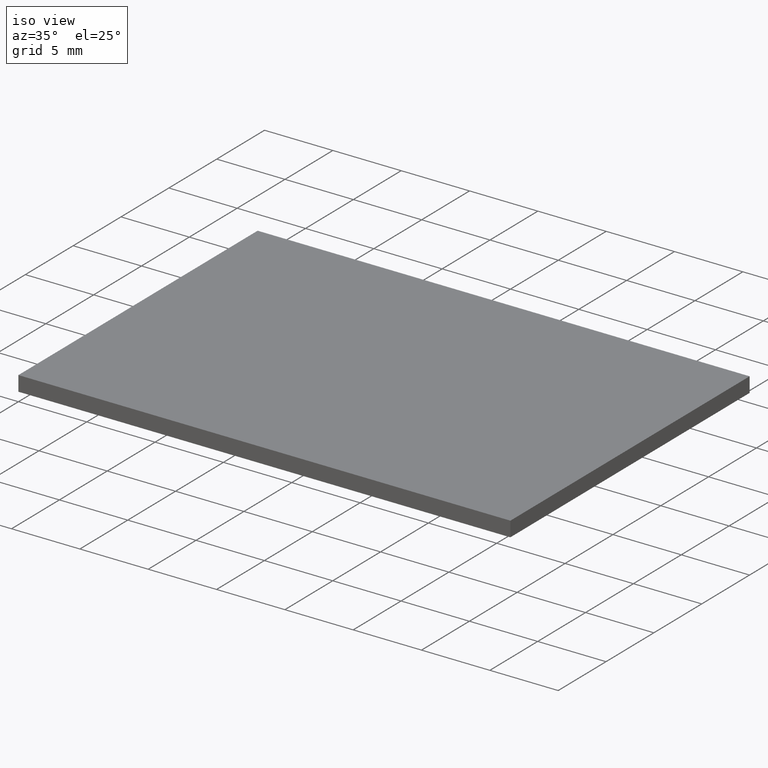
[diagram: clean part render]
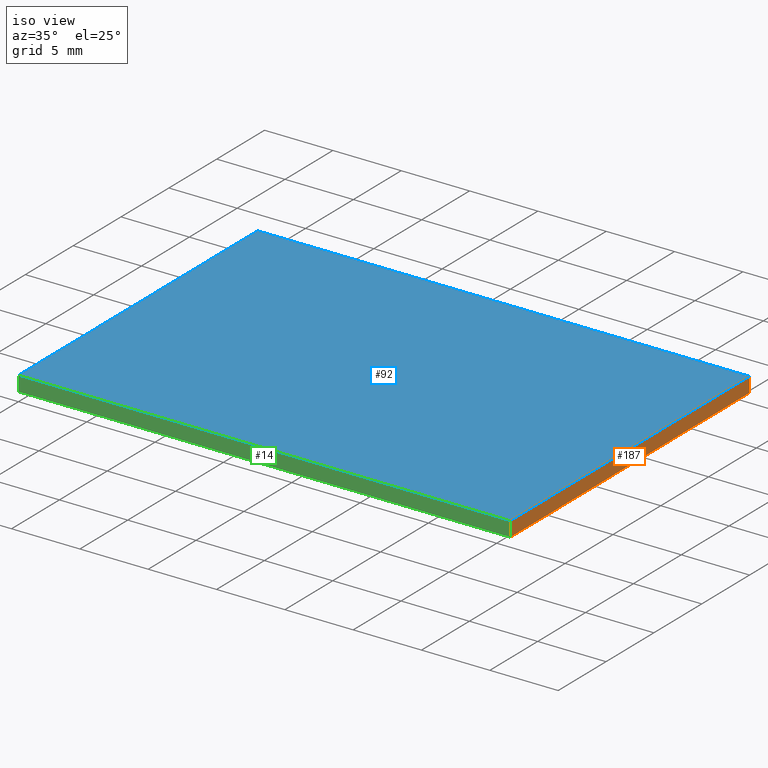
[diagram: same view with three faces highlighted in distinct colors, each labeled with its STEP entity id]
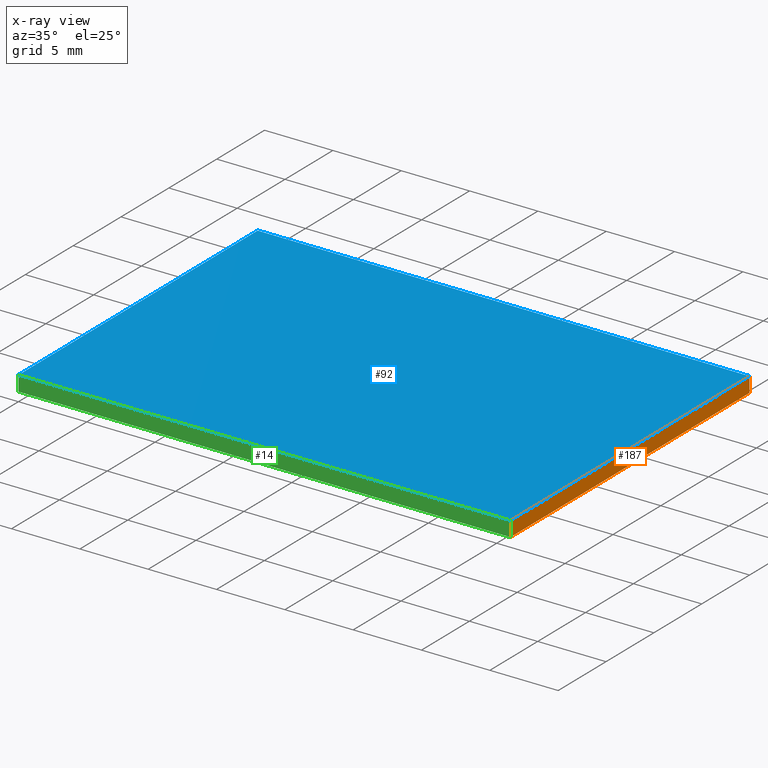
[diagram: x-ray of the same camera — body ghosted, the three highlighted faces saturated]
A machine part, iso view with three faces highlighted in distinct colors.
The next image is the same camera in x-ray (body ghosted, the three faces saturated) — at least one of them is partly hidden behind the body in this view.
Their STEP definitions:

[orange] entity #187 — the highlighted planar face has unit normal (-1, 0, 0).
#15 = ORIENTED_EDGE ( 'NONE', *, *, #182, .T. ) ;
#21 = DIRECTION ( 'NONE',  ( -0.000000000000000000, -0.000000000000000000, -1.000000000000000000 ) ) ;
#23 = EDGE_CURVE ( 'NONE', #202, #157, #91, .T. ) ;
#26 = DIRECTION ( 'NONE',  ( -1.000000000000000000, 0.000000000000000000, 0.000000000000000000 ) ) ;
#30 = DIRECTION ( 'NONE',  ( 0.000000000000000000, 1.000000000000000000, 0.000000000000000000 ) ) ;
#36 = VECTOR ( 'NONE', #158, 1000.000000000000000 ) ;
#40 = PLANE ( 'NONE',  #90 ) ;
#42 = LINE ( 'NONE', #117, #141 ) ;
#45 = VERTEX_POINT ( 'NONE', #197 ) ;
#51 = ORIENTED_EDGE ( 'NONE', *, *, #56, .F. ) ;
#56 = EDGE_CURVE ( 'NONE', #89, #45, #78, .T. ) ;
#63 = CARTESIAN_POINT ( 'NONE',  ( 36.00000000000000000, 25.00000000000000000, 1.100000000000000089 ) ) ;
#78 = LINE ( 'NONE', #161, #159 ) ;
#87 = VECTOR ( 'NONE', #151, 1000.000000000000000 ) ;
#88 = CARTESIAN_POINT ( 'NONE',  ( 36.00000000000000000, 0.000000000000000000, 1.100000000000000089 ) ) ;
#89 = VERTEX_POINT ( 'NONE', #63 ) ;
#90 = AXIS2_PLACEMENT_3D ( 'NONE', #101, #26, #166 ) ;
#91 = LINE ( 'NONE', #88, #87 ) ;
#93 = CARTESIAN_POINT ( 'NONE',  ( 36.00000000000000000, 0.000000000000000000, 1.100000000000000089 ) ) ;
#101 = CARTESIAN_POINT ( 'NONE',  ( 36.00000000000000000, 0.000000000000000000, 1.100000000000000089 ) ) ;
#105 = ORIENTED_EDGE ( 'NONE', *, *, #23, .T. ) ;
#111 = LINE ( 'NONE', #93, #36 ) ;
#117 = CARTESIAN_POINT ( 'NONE',  ( 36.00000000000000000, 0.000000000000000000, 0.000000000000000000 ) ) ;
#123 = ORIENTED_EDGE ( 'NONE', *, *, #149, .F. ) ;
#133 = CARTESIAN_POINT ( 'NONE',  ( 36.00000000000000000, 0.000000000000000000, 1.100000000000000089 ) ) ;
#141 = VECTOR ( 'NONE', #30, 1000.000000000000000 ) ;
#149 = EDGE_CURVE ( 'NONE', #202, #89, #111, .T. ) ;
#151 = DIRECTION ( 'NONE',  ( -0.000000000000000000, -0.000000000000000000, -1.000000000000000000 ) ) ;
#153 = EDGE_LOOP ( 'NONE', ( #15, #51, #123, #105 ) ) ;
#157 = VERTEX_POINT ( 'NONE', #179 ) ;
#158 = DIRECTION ( 'NONE',  ( 0.000000000000000000, 1.000000000000000000, 0.000000000000000000 ) ) ;
#159 = VECTOR ( 'NONE', #21, 1000.000000000000000 ) ;
#161 = CARTESIAN_POINT ( 'NONE',  ( 36.00000000000000000, 25.00000000000000000, 1.100000000000000089 ) ) ;
#166 = DIRECTION ( 'NONE',  ( 0.000000000000000000, 0.000000000000000000, 1.000000000000000000 ) ) ;
#179 = CARTESIAN_POINT ( 'NONE',  ( 36.00000000000000000, 0.000000000000000000, 0.000000000000000000 ) ) ;
#182 = EDGE_CURVE ( 'NONE', #157, #45, #42, .T. ) ;
#187 = ADVANCED_FACE ( 'NONE', ( #199 ), #40, .F. ) ;
#197 = CARTESIAN_POINT ( 'NONE',  ( 36.00000000000000000, 25.00000000000000000, 0.000000000000000000 ) ) ;
#199 = FACE_OUTER_BOUND ( 'NONE', #153, .T. ) ;
#202 = VERTEX_POINT ( 'NONE', #133 ) ;

[blue] entity #92 — the highlighted planar face has unit normal (0, 0, -1).
#5 = EDGE_CURVE ( 'NONE', #89, #59, #189, .T. ) ;
#12 = VECTOR ( 'NONE', #79, 1000.000000000000000 ) ;
#16 = LINE ( 'NONE', #145, #139 ) ;
#25 = DIRECTION ( 'NONE',  ( 0.000000000000000000, 0.000000000000000000, -1.000000000000000000 ) ) ;
#27 = ORIENTED_EDGE ( 'NONE', *, *, #149, .T. ) ;
#34 = CARTESIAN_POINT ( 'NONE',  ( 0.000000000000000000, 0.000000000000000000, 1.100000000000000089 ) ) ;
#36 = VECTOR ( 'NONE', #158, 1000.000000000000000 ) ;
#38 = DIRECTION ( 'NONE',  ( -1.000000000000000000, 0.000000000000000000, -0.000000000000000000 ) ) ;
#39 = EDGE_CURVE ( 'NONE', #167, #202, #16, .T. ) ;
#43 = VECTOR ( 'NONE', #138, 1000.000000000000000 ) ;
#59 = VERTEX_POINT ( 'NONE', #80 ) ;
#60 = PLANE ( 'NONE',  #196 ) ;
#63 = CARTESIAN_POINT ( 'NONE',  ( 36.00000000000000000, 25.00000000000000000, 1.100000000000000089 ) ) ;
#68 = CARTESIAN_POINT ( 'NONE',  ( 0.000000000000000000, 0.000000000000000000, 1.100000000000000089 ) ) ;
#79 = DIRECTION ( 'NONE',  ( -0.000000000000000000, -1.000000000000000000, -0.000000000000000000 ) ) ;
#80 = CARTESIAN_POINT ( 'NONE',  ( 0.000000000000000000, 25.00000000000000000, 1.100000000000000089 ) ) ;
#89 = VERTEX_POINT ( 'NONE', #63 ) ;
#92 = ADVANCED_FACE ( 'NONE', ( #112 ), #60, .F. ) ;
#93 = CARTESIAN_POINT ( 'NONE',  ( 36.00000000000000000, 0.000000000000000000, 1.100000000000000089 ) ) ;
#96 = DIRECTION ( 'NONE',  ( 1.000000000000000000, 0.000000000000000000, 0.000000000000000000 ) ) ;
#106 = ORIENTED_EDGE ( 'NONE', *, *, #119, .T. ) ;
#108 = CARTESIAN_POINT ( 'NONE',  ( 0.000000000000000000, 25.00000000000000000, 1.100000000000000089 ) ) ;
#111 = LINE ( 'NONE', #93, #36 ) ;
#112 = FACE_OUTER_BOUND ( 'NONE', #137, .T. ) ;
#119 = EDGE_CURVE ( 'NONE', #59, #167, #195, .T. ) ;
#121 = ORIENTED_EDGE ( 'NONE', *, *, #5, .T. ) ;
#133 = CARTESIAN_POINT ( 'NONE',  ( 36.00000000000000000, 0.000000000000000000, 1.100000000000000089 ) ) ;
#137 = EDGE_LOOP ( 'NONE', ( #106, #140, #27, #121 ) ) ;
#138 = DIRECTION ( 'NONE',  ( -1.000000000000000000, -0.000000000000000000, -0.000000000000000000 ) ) ;
#139 = VECTOR ( 'NONE', #96, 1000.000000000000000 ) ;
#140 = ORIENTED_EDGE ( 'NONE', *, *, #39, .T. ) ;
#145 = CARTESIAN_POINT ( 'NONE',  ( 0.000000000000000000, 0.000000000000000000, 1.100000000000000089 ) ) ;
#149 = EDGE_CURVE ( 'NONE', #202, #89, #111, .T. ) ;
#158 = DIRECTION ( 'NONE',  ( 0.000000000000000000, 1.000000000000000000, 0.000000000000000000 ) ) ;
#160 = CARTESIAN_POINT ( 'NONE',  ( 0.000000000000000000, 0.000000000000000000, 1.100000000000000089 ) ) ;
#167 = VERTEX_POINT ( 'NONE', #68 ) ;
#189 = LINE ( 'NONE', #108, #43 ) ;
#195 = LINE ( 'NONE', #34, #12 ) ;
#196 = AXIS2_PLACEMENT_3D ( 'NONE', #160, #25, #38 ) ;
#202 = VERTEX_POINT ( 'NONE', #133 ) ;

[green] entity #14 — the highlighted planar face has unit normal (0, 1, 0).
#8 = CARTESIAN_POINT ( 'NONE',  ( 0.000000000000000000, 0.000000000000000000, 0.000000000000000000 ) ) ;
#14 = ADVANCED_FACE ( 'NONE', ( #154 ), #188, .F. ) ;
#16 = LINE ( 'NONE', #145, #139 ) ;
#17 = CARTESIAN_POINT ( 'NONE',  ( 0.000000000000000000, 0.000000000000000000, 0.000000000000000000 ) ) ;
#18 = VECTOR ( 'NONE', #22, 1000.000000000000000 ) ;
#22 = DIRECTION ( 'NONE',  ( -0.000000000000000000, -0.000000000000000000, -1.000000000000000000 ) ) ;
#23 = EDGE_CURVE ( 'NONE', #202, #157, #91, .T. ) ;
#24 = LINE ( 'NONE', #8, #113 ) ;
#28 = AXIS2_PLACEMENT_3D ( 'NONE', #57, #32, #124 ) ;
#31 = VERTEX_POINT ( 'NONE', #17 ) ;
#32 = DIRECTION ( 'NONE',  ( 0.000000000000000000, 1.000000000000000000, 0.000000000000000000 ) ) ;
#39 = EDGE_CURVE ( 'NONE', #167, #202, #16, .T. ) ;
#44 = ORIENTED_EDGE ( 'NONE', *, *, #97, .T. ) ;
#53 = EDGE_CURVE ( 'NONE', #31, #157, #24, .T. ) ;
#57 = CARTESIAN_POINT ( 'NONE',  ( 0.000000000000000000, 0.000000000000000000, 1.100000000000000089 ) ) ;
#67 = CARTESIAN_POINT ( 'NONE',  ( 0.000000000000000000, 0.000000000000000000, 1.100000000000000089 ) ) ;
#68 = CARTESIAN_POINT ( 'NONE',  ( 0.000000000000000000, 0.000000000000000000, 1.100000000000000089 ) ) ;
#87 = VECTOR ( 'NONE', #151, 1000.000000000000000 ) ;
#88 = CARTESIAN_POINT ( 'NONE',  ( 36.00000000000000000, 0.000000000000000000, 1.100000000000000089 ) ) ;
#91 = LINE ( 'NONE', #88, #87 ) ;
#96 = DIRECTION ( 'NONE',  ( 1.000000000000000000, 0.000000000000000000, 0.000000000000000000 ) ) ;
#97 = EDGE_CURVE ( 'NONE', #167, #31, #177, .T. ) ;
#113 = VECTOR ( 'NONE', #127, 1000.000000000000000 ) ;
#120 = ORIENTED_EDGE ( 'NONE', *, *, #53, .T. ) ;
#124 = DIRECTION ( 'NONE',  ( 0.000000000000000000, -0.000000000000000000, 1.000000000000000000 ) ) ;
#127 = DIRECTION ( 'NONE',  ( 1.000000000000000000, 0.000000000000000000, 0.000000000000000000 ) ) ;
#133 = CARTESIAN_POINT ( 'NONE',  ( 36.00000000000000000, 0.000000000000000000, 1.100000000000000089 ) ) ;
#139 = VECTOR ( 'NONE', #96, 1000.000000000000000 ) ;
#145 = CARTESIAN_POINT ( 'NONE',  ( 0.000000000000000000, 0.000000000000000000, 1.100000000000000089 ) ) ;
#151 = DIRECTION ( 'NONE',  ( -0.000000000000000000, -0.000000000000000000, -1.000000000000000000 ) ) ;
#154 = FACE_OUTER_BOUND ( 'NONE', #173, .T. ) ;
#157 = VERTEX_POINT ( 'NONE', #179 ) ;
#167 = VERTEX_POINT ( 'NONE', #68 ) ;
#172 = ORIENTED_EDGE ( 'NONE', *, *, #23, .F. ) ;
#173 = EDGE_LOOP ( 'NONE', ( #120, #172, #184, #44 ) ) ;
#177 = LINE ( 'NONE', #67, #18 ) ;
#179 = CARTESIAN_POINT ( 'NONE',  ( 36.00000000000000000, 0.000000000000000000, 0.000000000000000000 ) ) ;
#184 = ORIENTED_EDGE ( 'NONE', *, *, #39, .F. ) ;
#188 = PLANE ( 'NONE',  #28 ) ;
#202 = VERTEX_POINT ( 'NONE', #133 ) ;